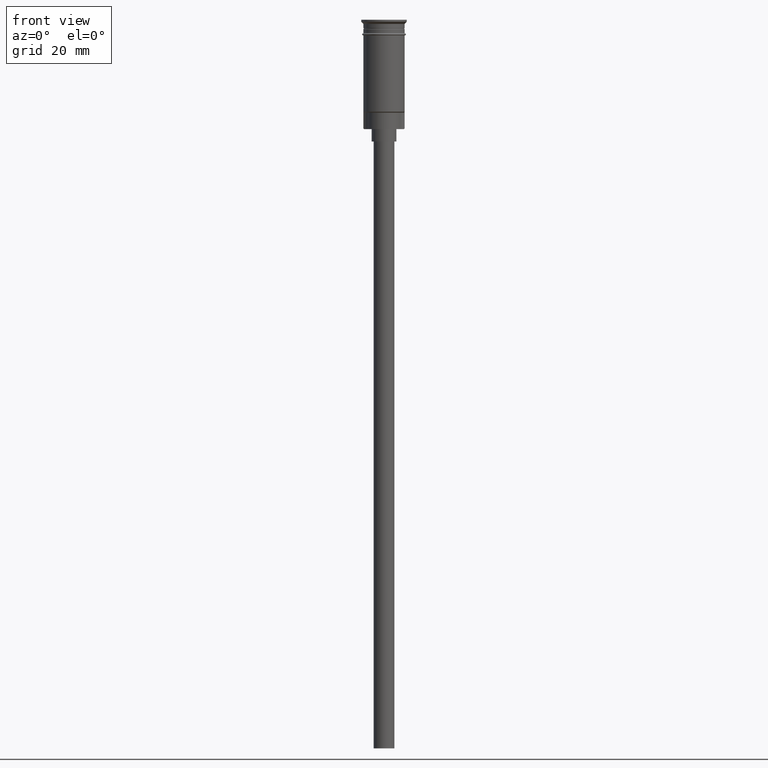
[diagram: clean part render]
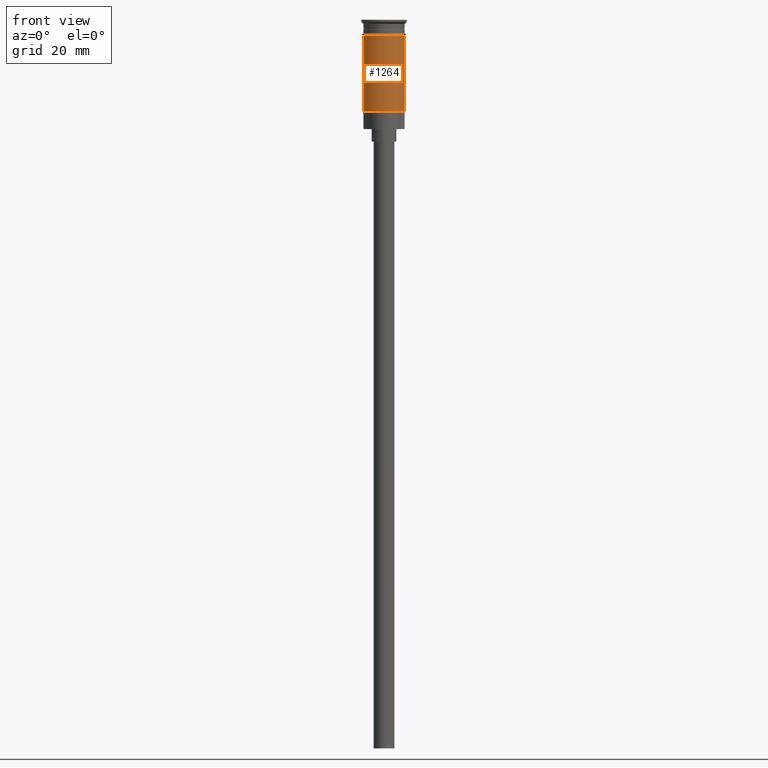
[diagram: same view with one face highlighted and labeled with its STEP entity id]
A machine part, front view. The second image highlights one B-rep face of the part: STEP entity #1264.
In plain terms, the highlighted cylindrical surface (edge-blend (fillet) strip) has radius 5 mm, axis along (-0, -0, 1).
Its self-contained STEP definition (entity closure, byte-faithful):
#13 = CARTESIAN_POINT ( 'NONE',  ( 0.000000000000000000, 0.000000000000000000, 0.000000000000000000 ) ) ;
#23 = DIRECTION ( 'NONE',  ( -0.000000000000000000, -0.000000000000000000, 1.000000000000000000 ) ) ;
#31 = CARTESIAN_POINT ( 'NONE',  ( 0.000000000000000000, 0.000000000000000000, -22.30000000000001137 ) ) ;
#92 = EDGE_CURVE ( 'NONE', #1568, #360, #1003, .T. ) ;
#108 = ORIENTED_EDGE ( 'NONE', *, *, #421, .F. ) ;
#206 = CARTESIAN_POINT ( 'NONE',  ( -4.999999999999996447, 6.123233995736762338E-16, 0.000000000000000000 ) ) ;
#283 = DIRECTION ( 'NONE',  ( -1.000000000000000000, 0.000000000000000000, 0.000000000000000000 ) ) ;
#284 = CARTESIAN_POINT ( 'NONE',  ( -4.999999999999999112, 6.123233995736765296E-16, -3.799999999999998934 ) ) ;
#330 = CARTESIAN_POINT ( 'NONE',  ( -4.999999999999993783, 0.000000000000000000, -22.30000000000001137 ) ) ;
#353 = EDGE_CURVE ( 'NONE', #452, #1568, #1381, .T. ) ;
#360 = VERTEX_POINT ( 'NONE', #761 ) ;
#390 = AXIS2_PLACEMENT_3D ( 'NONE', #879, #23, #424 ) ;
#421 = EDGE_CURVE ( 'NONE', #1270, #360, #1076, .T. ) ;
#424 = DIRECTION ( 'NONE',  ( 1.000000000000000000, 0.000000000000000000, 0.000000000000000000 ) ) ;
#452 = VERTEX_POINT ( 'NONE', #330 ) ;
#524 = FACE_OUTER_BOUND ( 'NONE', #548, .T. ) ;
#548 = EDGE_LOOP ( 'NONE', ( #942, #1125, #1061, #108 ) ) ;
#565 = VECTOR ( 'NONE', #1495, 1000.000000000000000 ) ;
#628 = DIRECTION ( 'NONE',  ( -0.000000000000000000, -0.000000000000000000, 1.000000000000000000 ) ) ;
#761 = CARTESIAN_POINT ( 'NONE',  ( 4.999999999999999112, 0.000000000000000000, -3.799999999999998934 ) ) ;
#879 = CARTESIAN_POINT ( 'NONE',  ( 0.000000000000000000, 0.000000000000000000, -3.799999999999998934 ) ) ;
#886 = CARTESIAN_POINT ( 'NONE',  ( 4.999999999999996447, 0.000000000000000000, 0.000000000000000000 ) ) ;
#942 = ORIENTED_EDGE ( 'NONE', *, *, #1272, .F. ) ;
#980 = CARTESIAN_POINT ( 'NONE',  ( 4.999999999999996447, 6.123233995736761352E-16, -22.30000000000001137 ) ) ;
#1003 = LINE ( 'NONE', #886, #565 ) ;
#1010 = DIRECTION ( 'NONE',  ( -0.000000000000000000, -0.000000000000000000, 1.000000000000000000 ) ) ;
#1058 = LINE ( 'NONE', #206, #1385 ) ;
#1061 = ORIENTED_EDGE ( 'NONE', *, *, #92, .T. ) ;
#1076 = CIRCLE ( 'NONE', #390, 4.999999999999999112 ) ;
#1097 = AXIS2_PLACEMENT_3D ( 'NONE', #31, #628, #283 ) ;
#1125 = ORIENTED_EDGE ( 'NONE', *, *, #353, .T. ) ;
#1257 = CYLINDRICAL_SURFACE ( 'NONE', #1511, 4.999999999999996447 ) ;
#1264 = ADVANCED_FACE ( 'NONE', ( #524 ), #1257, .T. ) ;
#1270 = VERTEX_POINT ( 'NONE', #284 ) ;
#1272 = EDGE_CURVE ( 'NONE', #452, #1270, #1058, .T. ) ;
#1376 = DIRECTION ( 'NONE',  ( 1.000000000000000000, 0.000000000000000000, 0.000000000000000000 ) ) ;
#1381 = CIRCLE ( 'NONE', #1097, 4.999999999999996447 ) ;
#1385 = VECTOR ( 'NONE', #1447, 1000.000000000000000 ) ;
#1447 = DIRECTION ( 'NONE',  ( -0.000000000000000000, -0.000000000000000000, 1.000000000000000000 ) ) ;
#1495 = DIRECTION ( 'NONE',  ( -0.000000000000000000, -0.000000000000000000, 1.000000000000000000 ) ) ;
#1511 = AXIS2_PLACEMENT_3D ( 'NONE', #13, #1010, #1376 ) ;
#1568 = VERTEX_POINT ( 'NONE', #980 ) ;